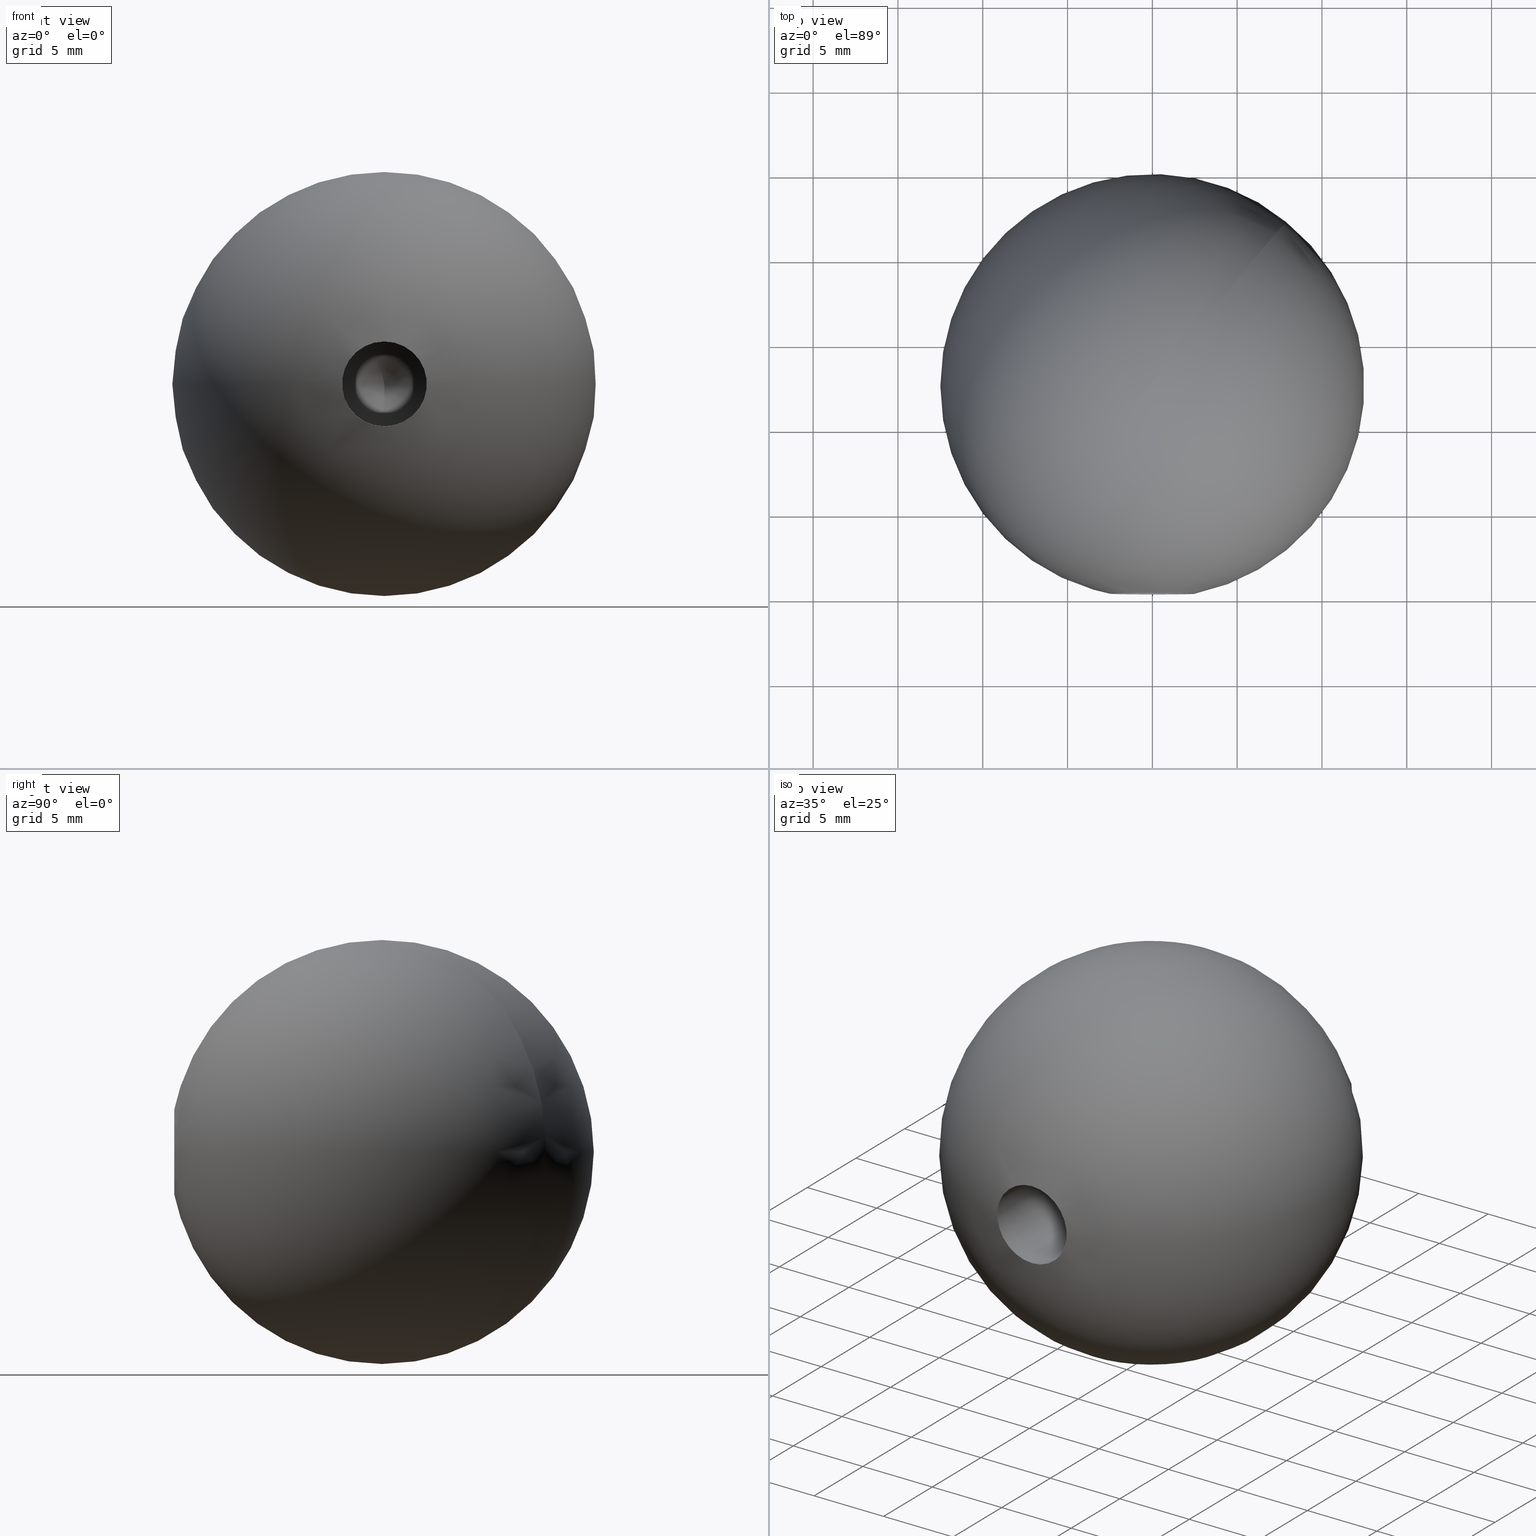
[diagram: canonical four-view strip — front | top / right | iso, engineering-drawing reading convention]
A machine part, canonical four-view strip (front | top / right | iso — engineering-drawing reading convention). The complete STEP part file that produces these views, byte-faithful:
ISO-10303-21;
HEADER;
FILE_DESCRIPTION (( 'STEP AP203' ),
    '1' );
FILE_NAME ('51025-V4A.step',
    '2023-09-08T07:10:36',
    ( '' ),
    ( '' ),
    'SwSTEP 2.0',
    'SolidWorks 2018',
    '' );
FILE_SCHEMA (( 'CONFIG_CONTROL_DESIGN' ));
ENDSEC;

DATA;
#1 = LOCAL_TIME ( 9, 10, 36.00000000000000000, #32 ) ;
#2 = CC_DESIGN_SECURITY_CLASSIFICATION ( #77, ( #27 ) ) ;
#3 = LOCAL_TIME ( 9, 10, 36.00000000000000000, #15 ) ;
#4 = AXIS2_PLACEMENT_3D ( 'NONE', #98, #31, #42 ) ;
#5 = CC_DESIGN_APPROVAL ( #9, ( #77 ) ) ;
#6 = CARTESIAN_POINT ( 'NONE',  ( 0.000000000000000000, 0.2525512860841062079, 0.000000000000000000 ) ) ;
#7 = CARTESIAN_POINT ( 'NONE',  ( 0.000000000000000000, 0.000000000000000000, 0.000000000000000000 ) ) ;
#8 = DIRECTION ( 'NONE',  ( 0.000000000000000000, 0.000000000000000000, -1.000000000000000000 ) ) ;
#9 = APPROVAL ( #48, 'UNSPECIFIED' ) ;
#10 = CALENDAR_DATE ( 2023, 8, 9 ) ;
#11 = APPLICATION_CONTEXT ( 'configuration controlled 3d designs of mechanical parts and assemblies' ) ;
#12 = SPHERICAL_SURFACE ( 'NONE', #59, 12.50000000000000000 ) ;
#13 = PRODUCT_RELATED_PRODUCT_CATEGORY ( 'detail', '', ( #70 ) ) ;
#14 = CLOSED_SHELL ( 'NONE', ( #123, #117, #51 ) ) ;
#15 = COORDINATED_UNIVERSAL_TIME_OFFSET ( 1, 0, .AHEAD. ) ;
#16 = CALENDAR_DATE ( 2023, 8, 9 ) ;
#17 = DIRECTION ( 'NONE',  ( -0.000000000000000000, -1.000000000000000000, -0.000000000000000000 ) ) ;
#18 = DIRECTION ( 'NONE',  ( -0.000000000000000000, -1.000000000000000000, -0.000000000000000000 ) ) ;
#19 = DIRECTION ( 'NONE',  ( -1.000000000000000000, -1.387778780781445676E-16, 0.000000000000000000 ) ) ;
#20 = APPLICATION_PROTOCOL_DEFINITION ( 'international standard', 'config_control_design', 1994, #71 ) ;
#21 = ORIENTED_EDGE ( 'NONE', *, *, #125, .F. ) ;
#22 = SHAPE_DEFINITION_REPRESENTATION ( #132, #127 ) ;
#23 = CONICAL_SURFACE ( 'NONE', #55, 2.499999999999986677, 1.029744258676651647 ) ;
#24 = UNCERTAINTY_MEASURE_WITH_UNIT (LENGTH_MEASURE( 1.000000000000000082E-05 ), #133, 'distance_accuracy_value', 'NONE');
#25 = CALENDAR_DATE ( 2023, 8, 9 ) ;
#26 = VERTEX_POINT ( 'NONE', #34 ) ;
#27 = PRODUCT_DEFINITION_FORMATION_WITH_SPECIFIED_SOURCE ( 'ANY', '', #70, .NOT_KNOWN. ) ;
#28 = CARTESIAN_POINT ( 'NONE',  ( 0.000000000000000000, 0.2525512860841062079, 2.499999999999988454 ) ) ;
#29 = DATE_AND_TIME ( #86, #3 ) ;
#30 = PERSON_AND_ORGANIZATION ( #50, #118 ) ;
#31 = DIRECTION ( 'NONE',  ( -0.000000000000000000, -1.000000000000000000, -0.000000000000000000 ) ) ;
#32 = COORDINATED_UNIVERSAL_TIME_OFFSET ( 1, 0, .AHEAD. ) ;
#33 = DESIGN_CONTEXT ( 'detailed design', #11, 'design' ) ;
#34 = CARTESIAN_POINT ( 'NONE',  ( 0.000000000000000000, 17.00000000000000000, -2.499999999999986677 ) ) ;
#35 = DATE_TIME_ROLE ( 'classification_date' ) ;
#36 = APPROVAL_STATUS ( 'not_yet_approved' ) ;
#37 = PERSON_AND_ORGANIZATION_ROLE ( 'creator' ) ;
#38 = LOCAL_TIME ( 9, 10, 36.00000000000000000, #90 ) ;
#39 = APPLICATION_PROTOCOL_DEFINITION ( 'international standard', 'config_control_design', 1994, #11 ) ;
#40 = PERSON_AND_ORGANIZATION ( #50, #118 ) ;
#41 = MANIFOLD_SOLID_BREP ( 'M6 Gewindebohrung2', #14 ) ;
#42 = DIRECTION ( 'NONE',  ( 0.000000000000000000, 0.000000000000000000, -1.000000000000000000 ) ) ;
#43 =( NAMED_UNIT ( * ) PLANE_ANGLE_UNIT ( ) SI_UNIT ( $, .RADIAN. ) );
#44 = DATE_AND_TIME ( #16, #38 ) ;
#45 = PERSON_AND_ORGANIZATION ( #50, #118 ) ;
#46 = PERSON_AND_ORGANIZATION_ROLE ( 'classification_officer' ) ;
#47 = DATE_TIME_ROLE ( 'creation_date' ) ;
#48 = APPROVAL_STATUS ( 'not_yet_approved' ) ;
#49 = AXIS2_PLACEMENT_3D ( 'NONE', #7, #18, #8 ) ;
#50 = PERSON ( 'UNSPECIFIED', 'UNSPECIFIED', 'UNSPECIFIED', ('UNSPECIFIED'), ('UNSPECIFIED'), ('UNSPECIFIED') ) ;
#51 = ADVANCED_FACE ( 'NONE', ( #92, #89 ), #128, .F. ) ;
#52 = CALENDAR_DATE ( 2023, 8, 9 ) ;
#53 = DIRECTION ( 'NONE',  ( 0.000000000000000000, 0.000000000000000000, 1.000000000000000000 ) ) ;
#54 = EDGE_LOOP ( 'NONE', ( #130 ) ) ;
#55 = AXIS2_PLACEMENT_3D ( 'NONE', #82, #17, #64 ) ;
#56 = APPROVAL_DATE_TIME ( #44, #65 ) ;
#57 = APPROVAL_STATUS ( 'not_yet_approved' ) ;
#58 = PERSON_AND_ORGANIZATION_ROLE ( 'design_owner' ) ;
#59 = AXIS2_PLACEMENT_3D ( 'NONE', #113, #121, #19 ) ;
#60 = PERSON_AND_ORGANIZATION ( #50, #118 ) ;
#61 = APPROVAL_PERSON_ORGANIZATION ( #131, #88, #93 ) ;
#62 = CC_DESIGN_PERSON_AND_ORGANIZATION_ASSIGNMENT ( #40, #103, ( #27 ) ) ;
#63 = DIRECTION ( 'NONE',  ( -0.000000000000000000, -1.000000000000000000, -0.000000000000000000 ) ) ;
#64 = DIRECTION ( 'NONE',  ( 0.000000000000000000, 0.000000000000000000, -1.000000000000000000 ) ) ;
#65 = APPROVAL ( #57, 'UNSPECIFIED' ) ;
#66 = CIRCLE ( 'NONE', #81, 2.499999999999988454 ) ;
#67 = CARTESIAN_POINT ( 'NONE',  ( 0.000000000000000000, 0.000000000000000000, 0.000000000000000000 ) ) ;
#68 = PERSON_AND_ORGANIZATION_ROLE ( 'design_supplier' ) ;
#69 = APPROVAL_PERSON_ORGANIZATION ( #87, #65, #114 ) ;
#70 = PRODUCT ( '51025-V4A', '51025-V4A', '', ( #105 ) ) ;
#71 = APPLICATION_CONTEXT ( 'configuration controlled 3d designs of mechanical parts and assemblies' ) ;
#72 = LOCAL_TIME ( 9, 10, 36.00000000000000000, #108 ) ;
#73 = CIRCLE ( 'NONE', #4, 2.499999999999986677 ) ;
#74 = CC_DESIGN_DATE_AND_TIME_ASSIGNMENT ( #29, #35, ( #77 ) ) ;
#75 = ORIENTED_EDGE ( 'NONE', *, *, #134, .T. ) ;
#76 = FACE_OUTER_BOUND ( 'NONE', #54, .T. ) ;
#77 = SECURITY_CLASSIFICATION ( '', '', #91 ) ;
#78 =( GEOMETRIC_REPRESENTATION_CONTEXT ( 3 ) GLOBAL_UNCERTAINTY_ASSIGNED_CONTEXT ( ( #24 ) ) GLOBAL_UNIT_ASSIGNED_CONTEXT ( ( #133, #43, #111 ) ) REPRESENTATION_CONTEXT ( 'NONE', 'WORKASPACE' ) );
#79 = DIRECTION ( 'NONE',  ( 0.000000000000000000, 0.000000000000000000, 1.000000000000000000 ) ) ;
#80 = EDGE_LOOP ( 'NONE', ( #75 ) ) ;
#81 = AXIS2_PLACEMENT_3D ( 'NONE', #6, #63, #79 ) ;
#82 = CARTESIAN_POINT ( 'NONE',  ( 0.000000000000000000, 17.00000000000000000, 0.000000000000000000 ) ) ;
#83 = CC_DESIGN_APPROVAL ( #88, ( #115 ) ) ;
#84 = LOCAL_TIME ( 9, 10, 36.00000000000000000, #135 ) ;
#85 = AXIS2_PLACEMENT_3D ( 'NONE', #67, #53, #126 ) ;
#86 = CALENDAR_DATE ( 2023, 8, 9 ) ;
#87 = PERSON_AND_ORGANIZATION ( #50, #118 ) ;
#88 = APPROVAL ( #36, 'UNSPECIFIED' ) ;
#89 = FACE_OUTER_BOUND ( 'NONE', #119, .T. ) ;
#90 = COORDINATED_UNIVERSAL_TIME_OFFSET ( 1, 0, .AHEAD. ) ;
#91 = SECURITY_CLASSIFICATION_LEVEL ( 'unclassified' ) ;
#92 = FACE_OUTER_BOUND ( 'NONE', #80, .T. ) ;
#93 = APPROVAL_ROLE ( '' ) ;
#94 = PERSON_AND_ORGANIZATION ( #50, #118 ) ;
#95 = CC_DESIGN_PERSON_AND_ORGANIZATION_ASSIGNMENT ( #45, #58, ( #70 ) ) ;
#96 = CC_DESIGN_PERSON_AND_ORGANIZATION_ASSIGNMENT ( #60, #46, ( #77 ) ) ;
#97 = ORIENTED_EDGE ( 'NONE', *, *, #134, .F. ) ;
#98 = CARTESIAN_POINT ( 'NONE',  ( 0.000000000000000000, 17.00000000000000000, 0.000000000000000000 ) ) ;
#99 = PERSON_AND_ORGANIZATION ( #50, #118 ) ;
#100 = APPROVAL_PERSON_ORGANIZATION ( #94, #9, #124 ) ;
#101 = FACE_OUTER_BOUND ( 'NONE', #107, .T. ) ;
#102 = CC_DESIGN_PERSON_AND_ORGANIZATION_ASSIGNMENT ( #99, #37, ( #115 ) ) ;
#103 = PERSON_AND_ORGANIZATION_ROLE ( 'creator' ) ;
#104 = DATE_AND_TIME ( #52, #1 ) ;
#105 = MECHANICAL_CONTEXT ( 'NONE', #71, 'mechanical' ) ;
#106 = DATE_AND_TIME ( #25, #72 ) ;
#107 = EDGE_LOOP ( 'NONE', ( #97 ) ) ;
#108 = COORDINATED_UNIVERSAL_TIME_OFFSET ( 1, 0, .AHEAD. ) ;
#109 = APPROVAL_DATE_TIME ( #104, #88 ) ;
#110 = CC_DESIGN_DATE_AND_TIME_ASSIGNMENT ( #116, #47, ( #115 ) ) ;
#111 =( NAMED_UNIT ( * ) SI_UNIT ( $, .STERADIAN. ) SOLID_ANGLE_UNIT ( ) );
#112 = APPROVAL_DATE_TIME ( #106, #9 ) ;
#113 = CARTESIAN_POINT ( 'NONE',  ( -6.933347799794072061E-32, 12.50000000000000000, 0.000000000000000000 ) ) ;
#114 = APPROVAL_ROLE ( '' ) ;
#115 = PRODUCT_DEFINITION ( 'UNKNOWN', '', #27, #33 ) ;
#116 = DATE_AND_TIME ( #10, #84 ) ;
#117 = ADVANCED_FACE ( 'NONE', ( #76 ), #23, .F. ) ;
#118 = ORGANIZATION ( 'UNSPECIFIED', 'UNSPECIFIED', '' ) ;
#119 = EDGE_LOOP ( 'NONE', ( #21 ) ) ;
#120 = VERTEX_POINT ( 'NONE', #28 ) ;
#121 = DIRECTION ( 'NONE',  ( -0.000000000000000000, 0.000000000000000000, -1.000000000000000000 ) ) ;
#122 = CC_DESIGN_APPROVAL ( #65, ( #27 ) ) ;
#123 = ADVANCED_FACE ( 'NONE', ( #101 ), #12, .T. ) ;
#124 = APPROVAL_ROLE ( '' ) ;
#125 = EDGE_CURVE ( 'NONE', #26, #26, #73, .T. ) ;
#126 = DIRECTION ( 'NONE',  ( 1.000000000000000000, 0.000000000000000000, 0.000000000000000000 ) ) ;
#127 = ADVANCED_BREP_SHAPE_REPRESENTATION ( '51025-V4A', ( #41, #85 ), #78 ) ;
#128 = CYLINDRICAL_SURFACE ( 'NONE', #49, 2.499999999999988454 ) ;
#129 = CC_DESIGN_PERSON_AND_ORGANIZATION_ASSIGNMENT ( #30, #68, ( #27 ) ) ;
#130 = ORIENTED_EDGE ( 'NONE', *, *, #125, .T. ) ;
#131 = PERSON_AND_ORGANIZATION ( #50, #118 ) ;
#132 = PRODUCT_DEFINITION_SHAPE ( 'NONE', 'NONE',  #115 ) ;
#133 =( LENGTH_UNIT ( ) NAMED_UNIT ( * ) SI_UNIT ( .MILLI., .METRE. ) );
#134 = EDGE_CURVE ( 'NONE', #120, #120, #66, .T. ) ;
#135 = COORDINATED_UNIVERSAL_TIME_OFFSET ( 1, 0, .AHEAD. ) ;
ENDSEC;
END-ISO-10303-21;
